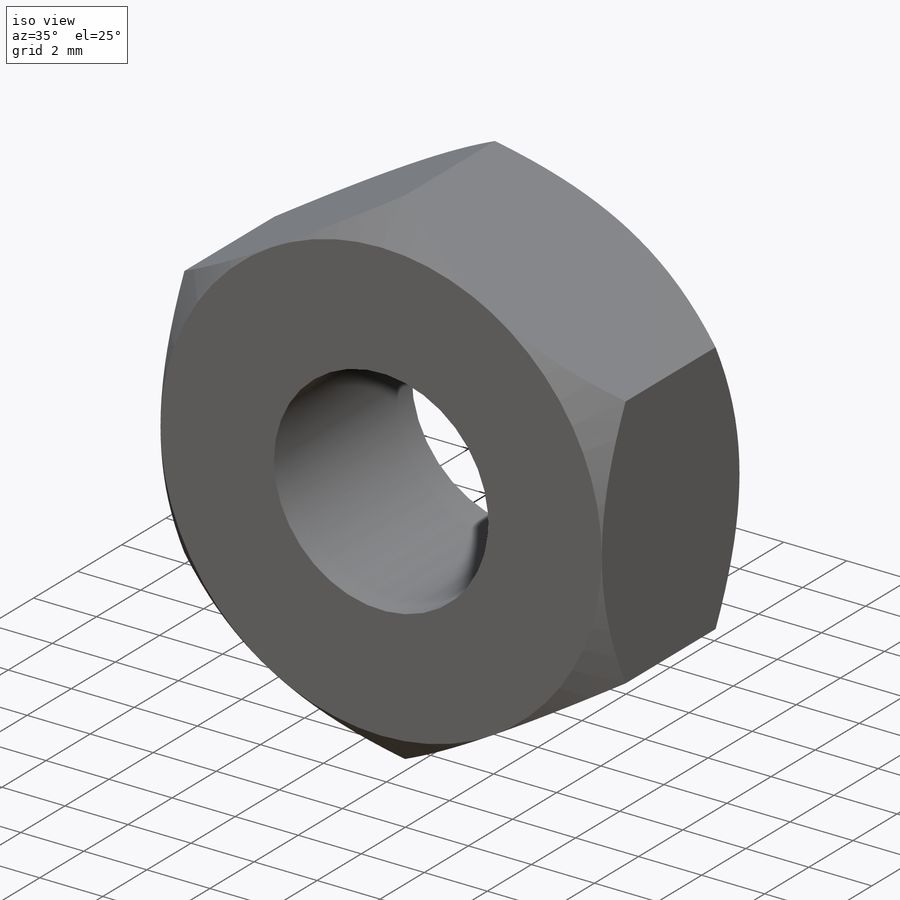
[diagram: iso view]
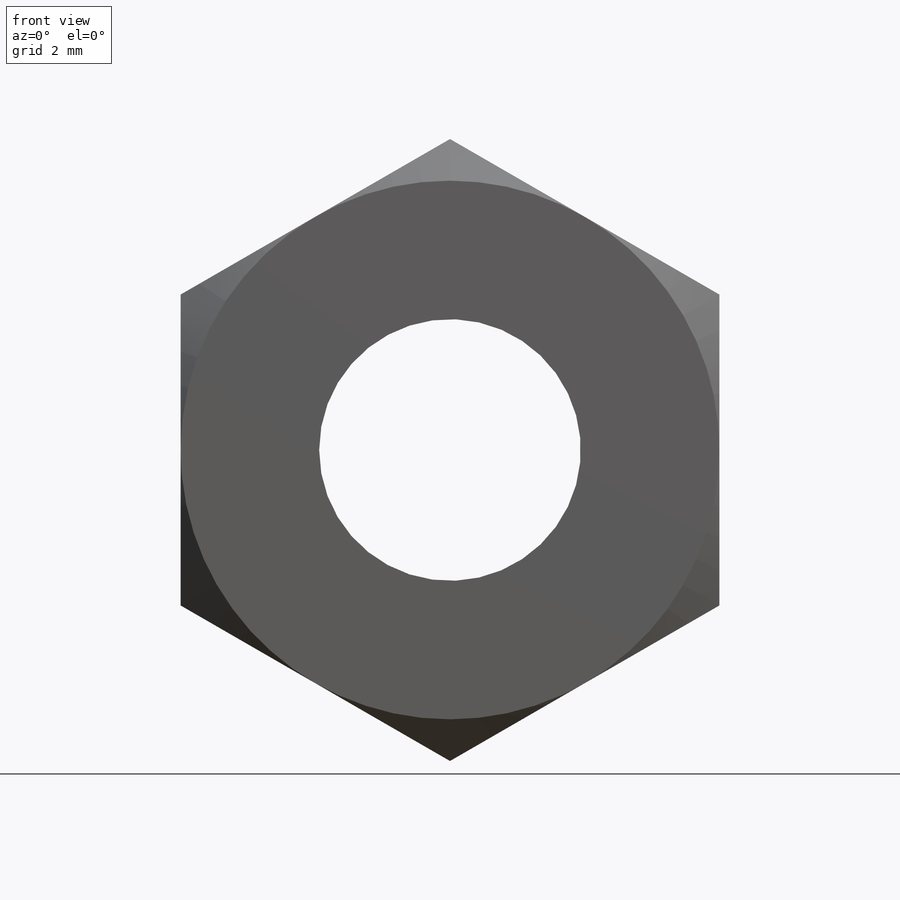
[diagram: front view]
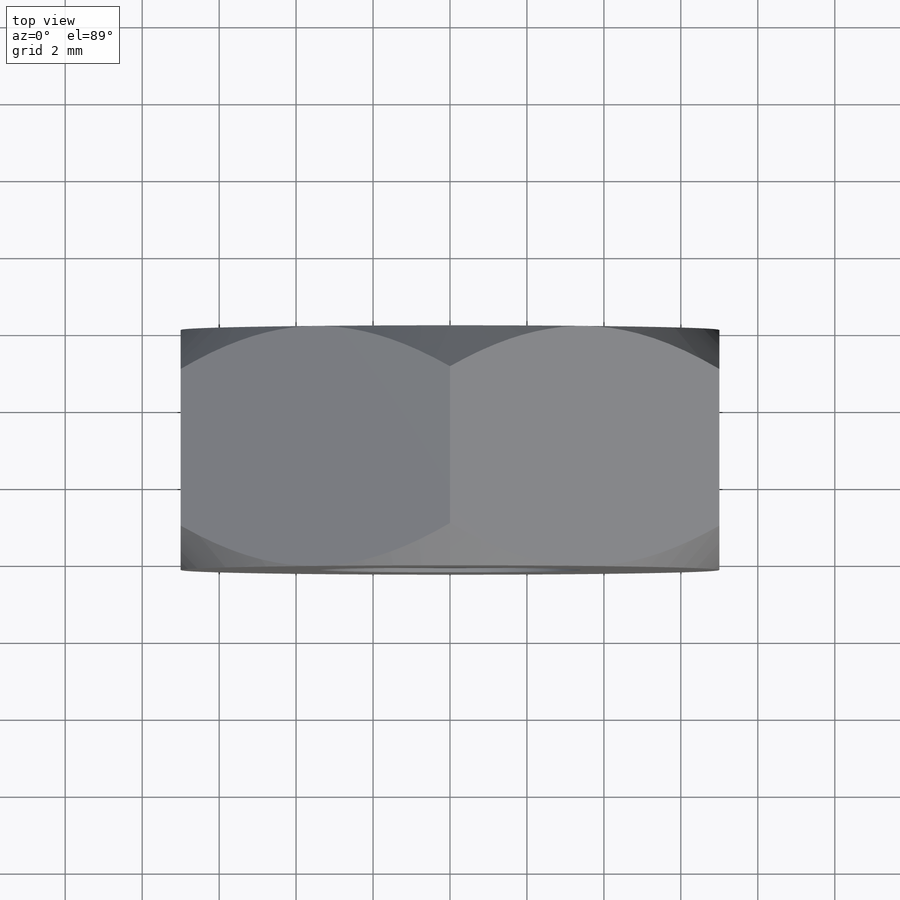
[diagram: top view]
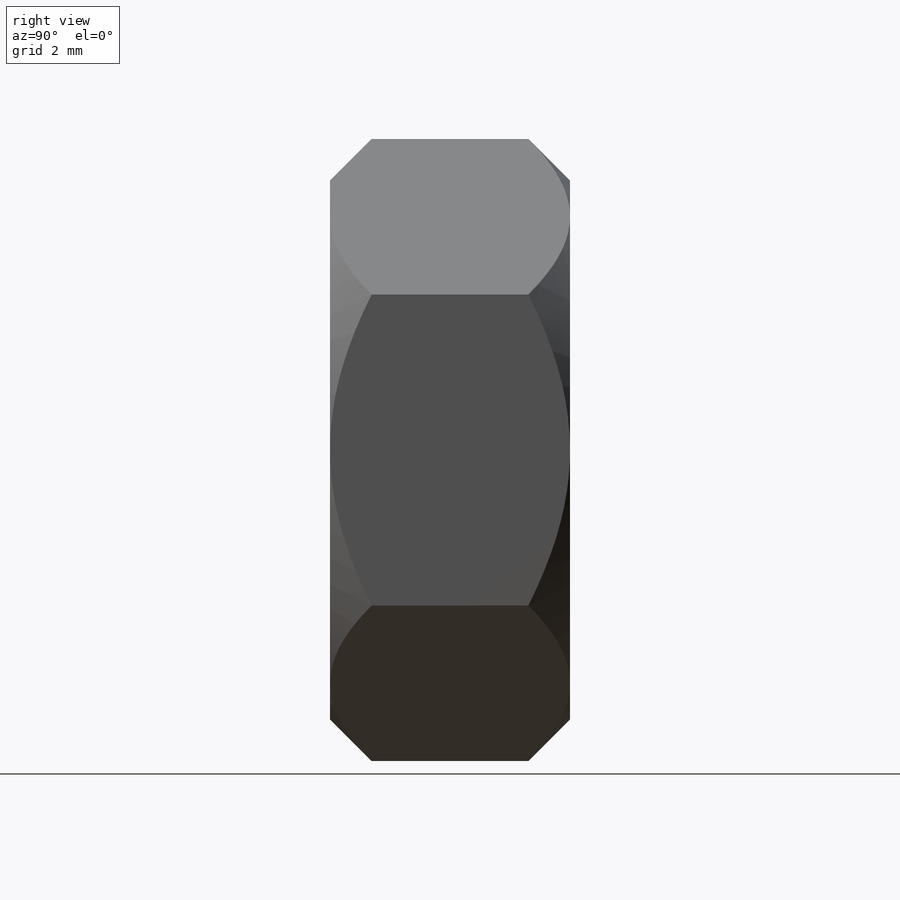
[diagram: right view]
SOLIDWORKS PART (.sldprt)
format: sldprt  version: not decoded by parser v0  size: 831,488 bytes
history: native  units: mm
features: sketch x13, extrude x4, plane x3, thread x3, chamfer x3, cut_extrude x3, material x1, revolve x1, hole x1, cut_revolve x1 + 1 further entry (+11 scaffold rows collapsed)
feature tree (45):
  scaffold x11  (default folders/planes/origin — collapsed)
  material  "AISI 304"
  plane  "前基準面"
  plane  "上基準面"
  plane  "右基準面"
  "設計表格"
  sketch  "草圖4"  dims[D1=10.0mm]
  extrude  "填料-伸長4"  [1 undecoded]
  thread  "裝飾螺紋線1"  Diameter=8mm  [1 undecoded]
  thread  "裝飾螺紋線2"  Diameter=15mm  [1 undecoded]
  chamfer  "導角2"  Distance=0.5mm Angle=45deg
  sketch  "草圖2"  dims[D1=7.0mm]
  extrude  "填料-伸長2"  Depth=3.5mm
  sketch  "草圖3"  dims[D1=3.0mm]
  cut_extrude  "除料-伸長1"  Depth=2mm
  chamfer  "導角1"  Distance=0.5mm Angle=45deg
  sketch  "草圖6"  dims[c1.D3=0.1mm c1.D5=4.2mm c1.D6=0.1mm c2.D5=4.0mm c2.D1=7.6mm c2.D2=2.3mm c2.D4=2.2mm c3.D5=3.0mm]
  revolve  "旋轉1"  Angle=360deg
  sketch  "草圖7"  dims[D1=2.5mm]
  cut_extrude  "除料-伸長2"  Depth=1mm
  chamfer  "導角3"  Distance=0.5mm Angle=45deg
  sketch  "草圖8"  dims[D1=2.5mm]
  cut_extrude  "除料-伸長3"  Depth=2mm
  sketch  "草圖9"  dims[D1=13.0mm]
  extrude  "填料-伸長5"  Depth=5.5mm
  sketch  "草圖11"
  sketch  "草圖12"  dims[D1=14.0mm]
  extrude  "填料-伸長6"  Depth=6.24mm
  hole  "M8 螺紋孔2"  [1 undecoded]
  sketch  "草圖15"
  sketch  "草圖14"  dims[hole-wizard template sketch: 59 standard entries collapsed; hole parameters kept: c18.貫穿螺孔鑽直徑=6.8mm c18.貫穿螺孔鑽深度=6.241mm]
  thread  "鑽孔螺紋3"  Diameter=8mm  [1 undecoded]
  sketch  "草圖16"
  sketch  "草圖17"
  cut_revolve  "除料-旋轉1"  Angle=360deg
decode coverage: 23 of 29 modeling features carry decoded parameters; 1 rows unclassified (native names shown)
note: ~ marks probable driven/reference dimensions
note: 5 parameter values undecoded
note: suppression state not decoded; provenance and decode notes live in map.json
